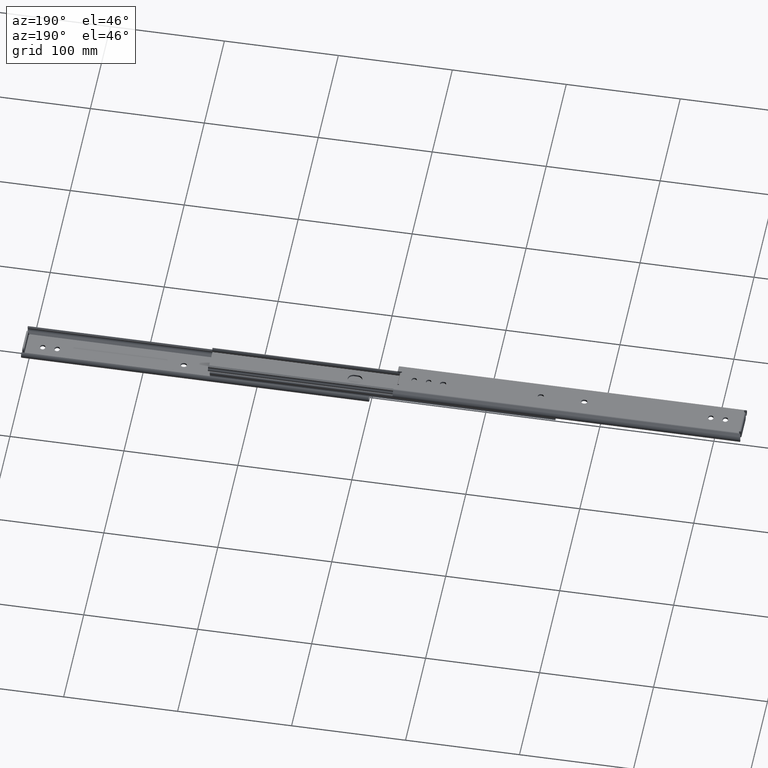
[diagram: clean part render]
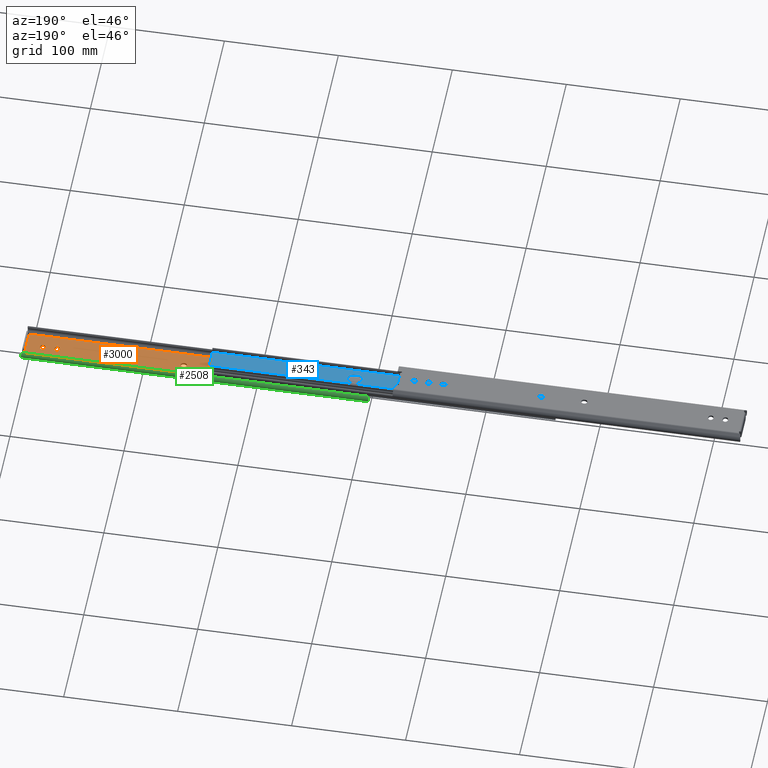
[diagram: same view with three faces highlighted in distinct colors, each labeled with its STEP entity id]
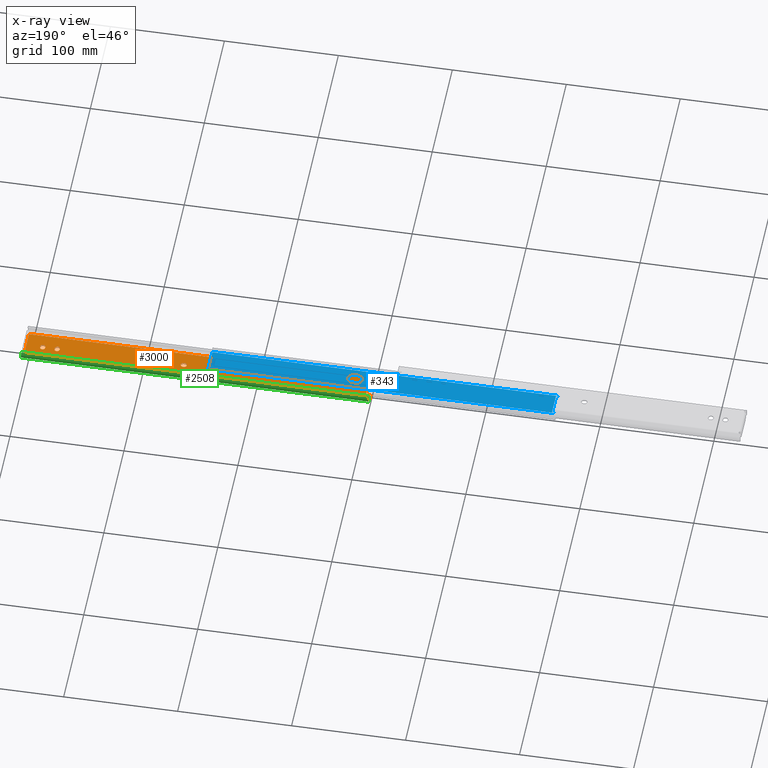
[diagram: x-ray of the same camera — body ghosted, the three highlighted faces saturated]
A machine part, auxiliary view with three faces highlighted in distinct colors.
The next image is the same camera in x-ray (body ghosted, the three faces saturated) — at least one of them is partly hidden behind the body in this view.
Their STEP definitions:

[orange] entity #3000 — the highlighted planar face has unit normal (0, 0, -1).
#3 = ORIENTED_EDGE ( 'NONE', *, *, #467, .F. ) ;
#11 = CARTESIAN_POINT ( 'NONE',  ( 304.3000000000008100, -12.79999999999970100, 1.600000000000168200 ) ) ;
#19 = DIRECTION ( 'NONE',  ( 1.000000000000000000, 0.0000000000000000000, 0.0000000000000000000 ) ) ;
#30 = CARTESIAN_POINT ( 'NONE',  ( 304.3000000000012600, 11.49999999999984700, 1.600000000000168200 ) ) ;
#32 = AXIS2_PLACEMENT_3D ( 'NONE', #2582, #794, #3667 ) ;
#48 = DIRECTION ( 'NONE',  ( 1.000000000000000000, 0.0000000000000000000, 0.0000000000000000000 ) ) ;
#52 = EDGE_LOOP ( 'NONE', ( #2857, #1819, #738, #3979 ) ) ;
#53 = EDGE_CURVE ( 'NONE', #4549, #4540, #3614, .T. ) ;
#74 = CARTESIAN_POINT ( 'NONE',  ( 278.4500000000000500, 0.4000000000000100100, 1.600000000000168200 ) ) ;
#79 = ORIENTED_EDGE ( 'NONE', *, *, #585, .F. ) ;
#86 = ORIENTED_EDGE ( 'NONE', *, *, #1978, .F. ) ;
#95 = CARTESIAN_POINT ( 'NONE',  ( 278.4500000000000500, 0.4000000000000100100, 1.600000000000168200 ) ) ;
#107 = LINE ( 'NONE', #4324, #3666 ) ;
#116 = EDGE_CURVE ( 'NONE', #2299, #1694, #1504, .T. ) ;
#121 = ORIENTED_EDGE ( 'NONE', *, *, #3022, .F. ) ;
#122 = DIRECTION ( 'NONE',  ( -1.355252715606880500E-016, 1.000000000000000000, -0.0000000000000000000 ) ) ;
#124 = ORIENTED_EDGE ( 'NONE', *, *, #3804, .F. ) ;
#152 = CARTESIAN_POINT ( 'NONE',  ( 303.2000000000000500, -11.49999999999983300, 1.600000000000168200 ) ) ;
#153 = ORIENTED_EDGE ( 'NONE', *, *, #116, .F. ) ;
#154 = DIRECTION ( 'NONE',  ( 1.000000000000000000, 0.0000000000000000000, 0.0000000000000000000 ) ) ;
#155 = CIRCLE ( 'NONE', #3068, 2.250000000000029800 ) ;
#168 = LINE ( 'NONE', #1498, #1929 ) ;
#180 = VERTEX_POINT ( 'NONE', #3755 ) ;
#182 = VERTEX_POINT ( 'NONE', #910 ) ;
#186 = CARTESIAN_POINT ( 'NONE',  ( 164.6999999999999600, 2.249999999999973800, 1.600000000000168200 ) ) ;
#193 = EDGE_CURVE ( 'NONE', #339, #599, #1286, .T. ) ;
#206 = EDGE_CURVE ( 'NONE', #2419, #4187, #331, .T. ) ;
#211 = DIRECTION ( 'NONE',  ( 0.0000000000000000000, 0.0000000000000000000, 1.000000000000000000 ) ) ;
#219 = AXIS2_PLACEMENT_3D ( 'NONE', #4317, #2505, #48 ) ;
#234 = VERTEX_POINT ( 'NONE', #2885 ) ;
#248 = CARTESIAN_POINT ( 'NONE',  ( 304.8000000000000100, -11.49999999999983300, 1.600000000000168200 ) ) ;
#264 = CIRCLE ( 'NONE', #3771, 2.250000000000001800 ) ;
#267 = VECTOR ( 'NONE', #122, 1000.000000000000000 ) ;
#288 = EDGE_CURVE ( 'NONE', #1694, #1100, #946, .T. ) ;
#290 = EDGE_CURVE ( 'NONE', #3148, #3858, #1328, .T. ) ;
#300 = ORIENTED_EDGE ( 'NONE', *, *, #2108, .F. ) ;
#309 = LINE ( 'NONE', #2218, #2068 ) ;
#320 = CARTESIAN_POINT ( 'NONE',  ( 164.6999999999999600, 1.577250959088379500E-027, 1.600000000000168200 ) ) ;
#331 = CIRCLE ( 'NONE', #2842, 1.300000000000023400 ) ;
#339 = VERTEX_POINT ( 'NONE', #345 ) ;
#345 = CARTESIAN_POINT ( 'NONE',  ( 291.1500000000000900, -0.3999999999999835900, 1.600000000000168200 ) ) ;
#359 = CARTESIAN_POINT ( 'NONE',  ( 13.65000000000000000, 0.3999999999999968000, 1.600000000000168200 ) ) ;
#360 = CARTESIAN_POINT ( 'NONE',  ( 3.800000000000001600, -8.000000000000000000, 1.600000000000168200 ) ) ;
#361 = DIRECTION ( 'NONE',  ( -1.000000000000000000, 1.734723475976775900E-014, 0.0000000000000000000 ) ) ;
#368 = EDGE_CURVE ( 'NONE', #3092, #1339, #168, .T. ) ;
#375 = DIRECTION ( 'NONE',  ( -1.000000000000000000, 0.0000000000000000000, -0.0000000000000000000 ) ) ;
#384 = VECTOR ( 'NONE', #3209, 1000.000000000000000 ) ;
#404 = CARTESIAN_POINT ( 'NONE',  ( 13.64999999999999900, -0.3999999999999964700, 1.600000000000168200 ) ) ;
#417 = ORIENTED_EDGE ( 'NONE', *, *, #3063, .F. ) ;
#424 = CARTESIAN_POINT ( 'NONE',  ( 273.9500000000000500, 0.4000000000000635300, 1.600000000000168200 ) ) ;
#429 = DIRECTION ( 'NONE',  ( -0.0000000000000000000, 1.000000000000000000, -0.0000000000000000000 ) ) ;
#448 = ORIENTED_EDGE ( 'NONE', *, *, #2178, .F. ) ;
#456 = DIRECTION ( 'NONE',  ( 1.000000000000000000, 0.0000000000000000000, 0.0000000000000000000 ) ) ;
#459 = VERTEX_POINT ( 'NONE', #2244 ) ;
#467 = EDGE_CURVE ( 'NONE', #180, #4137, #2411, .T. ) ;
#514 = LINE ( 'NONE', #1767, #1566 ) ;
#536 = VECTOR ( 'NONE', #429, 1000.000000000000000 ) ;
#542 = LINE ( 'NONE', #1824, #1369 ) ;
#543 = CIRCLE ( 'NONE', #219, 2.250000000000001800 ) ;
#551 = CARTESIAN_POINT ( 'NONE',  ( 3.800000000000001600, -6.999999999999999100, 1.600000000000168200 ) ) ;
#559 = CARTESIAN_POINT ( 'NONE',  ( 278.4500000000000500, -0.3999999999999296300, 1.600000000000168200 ) ) ;
#571 = DIRECTION ( 'NONE',  ( 0.0000000000000000000, 0.0000000000000000000, 1.000000000000000000 ) ) ;
#585 = EDGE_CURVE ( 'NONE', #3802, #182, #107, .T. ) ;
#599 = VERTEX_POINT ( 'NONE', #3673 ) ;
#611 = VERTEX_POINT ( 'NONE', #2465 ) ;
#613 = VECTOR ( 'NONE', #3831, 1000.000000000000000 ) ;
#628 = EDGE_CURVE ( 'NONE', #1912, #3148, #1749, .T. ) ;
#644 = VERTEX_POINT ( 'NONE', #2899 ) ;
#648 = VERTEX_POINT ( 'NONE', #424 ) ;
#657 = DIRECTION ( 'NONE',  ( 0.0000000000000000000, 0.0000000000000000000, 1.000000000000000000 ) ) ;
#664 = EDGE_CURVE ( 'NONE', #4540, #2216, #1541, .T. ) ;
#673 = FACE_BOUND ( 'NONE', #2407, .T. ) ;
#696 = ORIENTED_EDGE ( 'NONE', *, *, #1010, .T. ) ;
#702 = CARTESIAN_POINT ( 'NONE',  ( 164.6999999999999600, 2.249999999999973800, 1.600000000000168200 ) ) ;
#707 = VERTEX_POINT ( 'NONE', #3176 ) ;
#727 = ORIENTED_EDGE ( 'NONE', *, *, #1088, .F. ) ;
#735 = DIRECTION ( 'NONE',  ( 1.000000000000000000, 0.0000000000000000000, 0.0000000000000000000 ) ) ;
#738 = ORIENTED_EDGE ( 'NONE', *, *, #193, .F. ) ;
#757 = CARTESIAN_POINT ( 'NONE',  ( 304.3000000000008100, 12.79999999999970100, 1.600000000000168200 ) ) ;
#760 = VECTOR ( 'NONE', #842, 1000.000000000000000 ) ;
#765 = CARTESIAN_POINT ( 'NONE',  ( 1.708415533803517000E-015, -8.000000000000000000, 1.600000000000168200 ) ) ;
#766 = AXIS2_PLACEMENT_3D ( 'NONE', #2545, #4357, #3626 ) ;
#779 = DIRECTION ( 'NONE',  ( 0.0000000000000000000, -1.000000000000000000, 0.0000000000000000000 ) ) ;
#790 = DIRECTION ( 'NONE',  ( -0.0000000000000000000, 1.000000000000000000, -0.0000000000000000000 ) ) ;
#792 = CARTESIAN_POINT ( 'NONE',  ( 304.8000000000000100, -13.34999999999963900, 1.600000000000168200 ) ) ;
#794 = DIRECTION ( 'NONE',  ( 0.0000000000000000000, 0.0000000000000000000, 1.000000000000000000 ) ) ;
#799 = CARTESIAN_POINT ( 'NONE',  ( 41.70000000000000300, 3.337652803933819400E-015, 1.600000000000168200 ) ) ;
#813 = ORIENTED_EDGE ( 'NONE', *, *, #4379, .F. ) ;
#816 = ORIENTED_EDGE ( 'NONE', *, *, #1875, .F. ) ;
#842 = DIRECTION ( 'NONE',  ( 1.000000000000000000, 0.0000000000000000000, 0.0000000000000000000 ) ) ;
#859 = DIRECTION ( 'NONE',  ( 0.0000000000000000000, 0.0000000000000000000, 1.000000000000000000 ) ) ;
#868 = EDGE_CURVE ( 'NONE', #3401, #1339, #2522, .T. ) ;
#872 = VERTEX_POINT ( 'NONE', #765 ) ;
#877 = VECTOR ( 'NONE', #2202, 1000.000000000000000 ) ;
#886 = EDGE_CURVE ( 'NONE', #644, #611, #2306, .T. ) ;
#897 = AXIS2_PLACEMENT_3D ( 'NONE', #4420, #2263, #154 ) ;
#898 = VERTEX_POINT ( 'NONE', #95 ) ;
#899 = EDGE_CURVE ( 'NONE', #182, #4279, #543, .T. ) ;
#910 = CARTESIAN_POINT ( 'NONE',  ( 127.4000000000000200, -2.249999999999987600, 1.600000000000168200 ) ) ;
#937 = CARTESIAN_POINT ( 'NONE',  ( 26.34999999999999800, -0.3999999999999968600, 1.600000000000168200 ) ) ;
#946 = LINE ( 'NONE', #1429, #1654 ) ;
#948 = ORIENTED_EDGE ( 'NONE', *, *, #1689, .F. ) ;
#957 = DIRECTION ( 'NONE',  ( 0.0000000000000000000, 0.0000000000000000000, 1.000000000000000000 ) ) ;
#1000 = EDGE_CURVE ( 'NONE', #234, #2625, #4607, .T. ) ;
#1010 = EDGE_CURVE ( 'NONE', #4187, #3092, #2370, .T. ) ;
#1030 = VECTOR ( 'NONE', #1187, 1000.000000000000000 ) ;
#1069 = CIRCLE ( 'NONE', #3160, 2.249999999999974200 ) ;
#1076 = CARTESIAN_POINT ( 'NONE',  ( 18.15000000000000600, -0.3999999999999995800, 1.600000000000168200 ) ) ;
#1088 = EDGE_CURVE ( 'NONE', #459, #2285, #2995, .T. ) ;
#1098 = LINE ( 'NONE', #3679, #877 ) ;
#1100 = VERTEX_POINT ( 'NONE', #2997 ) ;
#1187 = DIRECTION ( 'NONE',  ( -1.000000000000000000, -0.0000000000000000000, -0.0000000000000000000 ) ) ;
#1228 = CARTESIAN_POINT ( 'NONE',  ( 303.2000000000000500, 11.49999999999984700, 1.600000000000168200 ) ) ;
#1230 = DIRECTION ( 'NONE',  ( -0.0000000000000000000, 1.000000000000000000, -0.0000000000000000000 ) ) ;
#1259 = CARTESIAN_POINT ( 'NONE',  ( 127.4000000000000200, 1.230082464744604100E-014, 1.600000000000168200 ) ) ;
#1286 = LINE ( 'NONE', #3287, #3893 ) ;
#1328 = LINE ( 'NONE', #359, #384 ) ;
#1336 = EDGE_LOOP ( 'NONE', ( #2293, #2735, #121, #1579 ) ) ;
#1339 = VERTEX_POINT ( 'NONE', #3642 ) ;
#1342 = CARTESIAN_POINT ( 'NONE',  ( 3.799999999999999400, 8.000000000000000000, 1.600000000000168200 ) ) ;
#1369 = VECTOR ( 'NONE', #779, 1000.000000000000000 ) ;
#1397 = CARTESIAN_POINT ( 'NONE',  ( 41.70000000000000300, -2.249999999999996400, 1.600000000000168200 ) ) ;
#1429 = CARTESIAN_POINT ( 'NONE',  ( 164.6999999999999600, -2.250000000000025800, 1.600000000000168200 ) ) ;
#1431 = VECTOR ( 'NONE', #3418, 1000.000000000000000 ) ;
#1439 = CARTESIAN_POINT ( 'NONE',  ( 3.799999999999999400, 8.000000000000000000, 1.600000000000168200 ) ) ;
#1441 = CARTESIAN_POINT ( 'NONE',  ( 41.70000000000000300, 3.337652803933819400E-015, 1.600000000000168200 ) ) ;
#1445 = ORIENTED_EDGE ( 'NONE', *, *, #2204, .F. ) ;
#1455 = AXIS2_PLACEMENT_3D ( 'NONE', #2988, #859, #3351 ) ;
#1468 = EDGE_CURVE ( 'NONE', #2216, #2761, #2255, .T. ) ;
#1477 = CARTESIAN_POINT ( 'NONE',  ( 129.6500000000000100, 1.230082464744604100E-014, 1.600000000000168200 ) ) ;
#1486 = VECTOR ( 'NONE', #2295, 1000.000000000000000 ) ;
#1496 = EDGE_CURVE ( 'NONE', #4207, #3372, #1540, .T. ) ;
#1498 = CARTESIAN_POINT ( 'NONE',  ( 0.0000000000000000000, 13.34999999999963900, 1.600000000000168200 ) ) ;
#1504 = CIRCLE ( 'NONE', #2327, 2.250000000000001800 ) ;
#1507 = EDGE_CURVE ( 'NONE', #3858, #1993, #3935, .T. ) ;
#1528 = CARTESIAN_POINT ( 'NONE',  ( 126.5999999999999900, 2.249999999999992900, 1.600000000000168200 ) ) ;
#1538 = CARTESIAN_POINT ( 'NONE',  ( 40.89999999999999100, 2.249999999999998200, 1.600000000000168200 ) ) ;
#1540 = LINE ( 'NONE', #2564, #267 ) ;
#1541 = LINE ( 'NONE', #3269, #4275 ) ;
#1561 = EDGE_CURVE ( 'NONE', #648, #1652, #1098, .T. ) ;
#1566 = VECTOR ( 'NONE', #4283, 1000.000000000000000 ) ;
#1579 = ORIENTED_EDGE ( 'NONE', *, *, #1507, .F. ) ;
#1606 = DIRECTION ( 'NONE',  ( 1.000000000000000000, 0.0000000000000000000, 0.0000000000000000000 ) ) ;
#1624 = FACE_BOUND ( 'NONE', #2660, .T. ) ;
#1638 = EDGE_CURVE ( 'NONE', #872, #2881, #542, .T. ) ;
#1652 = VERTEX_POINT ( 'NONE', #1838 ) ;
#1654 = VECTOR ( 'NONE', #19, 1000.000000000000000 ) ;
#1668 = VECTOR ( 'NONE', #4162, 1000.000000000000000 ) ;
#1689 = EDGE_CURVE ( 'NONE', #1100, #2479, #4112, .T. ) ;
#1694 = VERTEX_POINT ( 'NONE', #3645 ) ;
#1711 = DIRECTION ( 'NONE',  ( 0.0000000000000000000, 0.0000000000000000000, -1.000000000000000000 ) ) ;
#1733 = CARTESIAN_POINT ( 'NONE',  ( 303.1220781010617300, -13.34999999999963900, 1.600000000000168200 ) ) ;
#1742 = LINE ( 'NONE', #1538, #4497 ) ;
#1749 = CIRCLE ( 'NONE', #766, 2.250000000000001800 ) ;
#1767 = CARTESIAN_POINT ( 'NONE',  ( 286.6500000000000900, 0.4000000000000085700, 1.600000000000168200 ) ) ;
#1773 = DIRECTION ( 'NONE',  ( 0.0000000000000000000, 0.0000000000000000000, 1.000000000000000000 ) ) ;
#1776 = EDGE_CURVE ( 'NONE', #2479, #3449, #3656, .T. ) ;
#1780 = DIRECTION ( 'NONE',  ( 1.000000000000000000, 0.0000000000000000000, 0.0000000000000000000 ) ) ;
#1819 = ORIENTED_EDGE ( 'NONE', *, *, #2803, .F. ) ;
#1824 = CARTESIAN_POINT ( 'NONE',  ( 0.0000000000000000000, 13.34999999999963900, 1.600000000000168200 ) ) ;
#1838 = CARTESIAN_POINT ( 'NONE',  ( 273.9500000000000500, -0.4000000000000624200, 1.600000000000168200 ) ) ;
#1853 = DIRECTION ( 'NONE',  ( 0.0000000000000000000, 0.0000000000000000000, 1.000000000000000000 ) ) ;
#1875 = EDGE_CURVE ( 'NONE', #898, #648, #4169, .T. ) ;
#1879 = ORIENTED_EDGE ( 'NONE', *, *, #2428, .F. ) ;
#1912 = VERTEX_POINT ( 'NONE', #2698 ) ;
#1915 = CIRCLE ( 'NONE', #3220, 1.300000000000023400 ) ;
#1929 = VECTOR ( 'NONE', #2144, 1000.000000000000000 ) ;
#1942 = EDGE_CURVE ( 'NONE', #2625, #3802, #264, .T. ) ;
#1948 = EDGE_CURVE ( 'NONE', #2285, #3319, #2982, .T. ) ;
#1972 = CIRCLE ( 'NONE', #1455, 2.250000000000001800 ) ;
#1978 = EDGE_CURVE ( 'NONE', #3319, #3727, #1915, .T. ) ;
#1990 = DIRECTION ( 'NONE',  ( -1.000000000000000000, -0.0000000000000000000, -0.0000000000000000000 ) ) ;
#1993 = VERTEX_POINT ( 'NONE', #1076 ) ;
#2003 = CARTESIAN_POINT ( 'NONE',  ( 26.35000000000000100, 0.3999999999999965800, 1.600000000000168200 ) ) ;
#2022 = VECTOR ( 'NONE', #3801, 1000.000000000000000 ) ;
#2025 = DIRECTION ( 'NONE',  ( 0.0000000000000000000, 0.0000000000000000000, 1.000000000000000000 ) ) ;
#2031 = VECTOR ( 'NONE', #3356, 1000.000000000000000 ) ;
#2058 = VERTEX_POINT ( 'NONE', #2870 ) ;
#2068 = VECTOR ( 'NONE', #3304, 1000.000000000000000 ) ;
#2086 = CARTESIAN_POINT ( 'NONE',  ( 286.6500000000000900, -0.4000000000000084000, 1.600000000000168200 ) ) ;
#2108 = EDGE_CURVE ( 'NONE', #3089, #898, #4334, .T. ) ;
#2120 = LINE ( 'NONE', #702, #3815 ) ;
#2121 = CARTESIAN_POINT ( 'NONE',  ( 304.8000000000000100, 13.34999999999963900, 1.600000000000168200 ) ) ;
#2138 = CARTESIAN_POINT ( 'NONE',  ( 126.5999999999999900, -2.250000000000007100, 1.600000000000168200 ) ) ;
#2144 = DIRECTION ( 'NONE',  ( 0.0000000000000000000, -1.000000000000000000, 0.0000000000000000000 ) ) ;
#2178 = EDGE_CURVE ( 'NONE', #872, #4207, #309, .T. ) ;
#2202 = DIRECTION ( 'NONE',  ( 0.0000000000000000000, -1.000000000000000000, 0.0000000000000000000 ) ) ;
#2204 = EDGE_CURVE ( 'NONE', #3727, #2881, #3866, .T. ) ;
#2216 = VERTEX_POINT ( 'NONE', #2246 ) ;
#2218 = CARTESIAN_POINT ( 'NONE',  ( 1.708415533803517000E-015, -8.000000000000000000, 1.600000000000168200 ) ) ;
#2225 = AXIS2_PLACEMENT_3D ( 'NONE', #4183, #2025, #4535 ) ;
#2244 = CARTESIAN_POINT ( 'NONE',  ( 303.2000000000000500, 11.49999999999984700, 1.600000000000168200 ) ) ;
#2246 = CARTESIAN_POINT ( 'NONE',  ( 30.85000000000000100, 0.4000000000000040700, 1.600000000000168200 ) ) ;
#2252 = ORIENTED_EDGE ( 'NONE', *, *, #868, .F. ) ;
#2255 = CIRCLE ( 'NONE', #2977, 2.249999999999998700 ) ;
#2261 = DIRECTION ( 'NONE',  ( 1.000000000000000000, 0.0000000000000000000, 0.0000000000000000000 ) ) ;
#2263 = DIRECTION ( 'NONE',  ( 0.0000000000000000000, 0.0000000000000000000, 1.000000000000000000 ) ) ;
#2265 = EDGE_CURVE ( 'NONE', #2058, #180, #1972, .T. ) ;
#2285 = VERTEX_POINT ( 'NONE', #152 ) ;
#2293 = ORIENTED_EDGE ( 'NONE', *, *, #290, .F. ) ;
#2295 = DIRECTION ( 'NONE',  ( -1.000000000000000000, -0.0000000000000000000, -0.0000000000000000000 ) ) ;
#2296 = EDGE_CURVE ( 'NONE', #2419, #459, #2789, .T. ) ;
#2297 = ORIENTED_EDGE ( 'NONE', *, *, #1948, .F. ) ;
#2299 = VERTEX_POINT ( 'NONE', #186 ) ;
#2306 = CIRCLE ( 'NONE', #4366, 2.250000000000001800 ) ;
#2321 = CARTESIAN_POINT ( 'NONE',  ( 276.2000000000000500, -0.3999999999999308000, 1.600000000000168200 ) ) ;
#2327 = AXIS2_PLACEMENT_3D ( 'NONE', #320, #2424, #4582 ) ;
#2337 = VECTOR ( 'NONE', #2862, 1000.000000000000000 ) ;
#2340 = CARTESIAN_POINT ( 'NONE',  ( 3.799999999999999400, 8.000000000000000000, 1.600000000000168200 ) ) ;
#2370 = LINE ( 'NONE', #2703, #1431 ) ;
#2371 = AXIS2_PLACEMENT_3D ( 'NONE', #1441, #3934, #1780 ) ;
#2407 = EDGE_LOOP ( 'NONE', ( #79, #4403, #4608, #417, #4080 ) ) ;
#2411 = LINE ( 'NONE', #2964, #760 ) ;
#2419 = VERTEX_POINT ( 'NONE', #30 ) ;
#2424 = DIRECTION ( 'NONE',  ( 0.0000000000000000000, 0.0000000000000000000, 1.000000000000000000 ) ) ;
#2428 = EDGE_CURVE ( 'NONE', #3449, #2299, #2120, .T. ) ;
#2440 = FACE_OUTER_BOUND ( 'NONE', #2793, .T. ) ;
#2465 = CARTESIAN_POINT ( 'NONE',  ( 41.70000000000000300, 2.249999999999998200, 1.600000000000168200 ) ) ;
#2467 = DIRECTION ( 'NONE',  ( -0.0000000000000000000, -0.0000000000000000000, 1.000000000000000000 ) ) ;
#2478 = DIRECTION ( 'NONE',  ( 0.0000000000000000000, 0.0000000000000000000, -1.000000000000000000 ) ) ;
#2479 = VERTEX_POINT ( 'NONE', #3914 ) ;
#2505 = DIRECTION ( 'NONE',  ( 0.0000000000000000000, 0.0000000000000000000, 1.000000000000000000 ) ) ;
#2522 = LINE ( 'NONE', #2959, #1486 ) ;
#2545 = CARTESIAN_POINT ( 'NONE',  ( 15.89999999999999700, 0.3999999999999997400, 1.600000000000168200 ) ) ;
#2555 = FACE_BOUND ( 'NONE', #4339, .T. ) ;
#2564 = CARTESIAN_POINT ( 'NONE',  ( 3.799999999999999400, 8.000000000000000000, 1.600000000000168200 ) ) ;
#2582 = CARTESIAN_POINT ( 'NONE',  ( 15.90000000000000000, -0.3999999999999997400, 1.600000000000168200 ) ) ;
#2592 = VECTOR ( 'NONE', #1990, 1000.000000000000000 ) ;
#2609 = AXIS2_PLACEMENT_3D ( 'NONE', #2121, #2478, #375 ) ;
#2617 = LINE ( 'NONE', #2003, #1668 ) ;
#2625 = VERTEX_POINT ( 'NONE', #1528 ) ;
#2655 = ORIENTED_EDGE ( 'NONE', *, *, #1638, .T. ) ;
#2660 = EDGE_LOOP ( 'NONE', ( #4503, #3613, #4394, #2716 ) ) ;
#2674 = DIRECTION ( 'NONE',  ( 1.000000000000000000, 0.0000000000000000000, 0.0000000000000000000 ) ) ;
#2678 = ORIENTED_EDGE ( 'NONE', *, *, #4050, .F. ) ;
#2679 = CARTESIAN_POINT ( 'NONE',  ( 276.1999999999999900, 0.4000000000000097400, 1.600000000000168200 ) ) ;
#2698 = CARTESIAN_POINT ( 'NONE',  ( 18.15000000000000600, 0.3999999999999995800, 1.600000000000168200 ) ) ;
#2703 = CARTESIAN_POINT ( 'NONE',  ( 304.8000000000000100, 13.34999999999963900, 1.600000000000168200 ) ) ;
#2716 = ORIENTED_EDGE ( 'NONE', *, *, #53, .F. ) ;
#2735 = ORIENTED_EDGE ( 'NONE', *, *, #628, .F. ) ;
#2755 = ORIENTED_EDGE ( 'NONE', *, *, #2265, .F. ) ;
#2761 = VERTEX_POINT ( 'NONE', #3799 ) ;
#2773 = CARTESIAN_POINT ( 'NONE',  ( 288.9000000000000300, -0.3999999999999847600, 1.600000000000168200 ) ) ;
#2789 = LINE ( 'NONE', #3721, #3531 ) ;
#2793 = EDGE_LOOP ( 'NONE', ( #2902, #4507, #696, #3404, #2252, #2678, #124, #3216, #448, #2655, #1445, #86, #2297, #727 ) ) ;
#2803 = EDGE_CURVE ( 'NONE', #599, #3134, #3132, .T. ) ;
#2835 = CARTESIAN_POINT ( 'NONE',  ( 303.1220781010617300, 13.34999999999963900, 1.600000000000168200 ) ) ;
#2842 = AXIS2_PLACEMENT_3D ( 'NONE', #757, #1711, #4241 ) ;
#2857 = ORIENTED_EDGE ( 'NONE', *, *, #3658, .F. ) ;
#2862 = DIRECTION ( 'NONE',  ( -1.355252715606880500E-016, 1.000000000000000000, -0.0000000000000000000 ) ) ;
#2870 = CARTESIAN_POINT ( 'NONE',  ( 40.89999999999999100, 2.249999999999998200, 1.600000000000168200 ) ) ;
#2881 = VERTEX_POINT ( 'NONE', #4224 ) ;
#2885 = CARTESIAN_POINT ( 'NONE',  ( 127.4000000000000200, 2.249999999999992900, 1.600000000000168200 ) ) ;
#2899 = CARTESIAN_POINT ( 'NONE',  ( 43.95000000000000300, 3.337652803933819400E-015, 1.600000000000168200 ) ) ;
#2902 = ORIENTED_EDGE ( 'NONE', *, *, #2296, .F. ) ;
#2928 = DIRECTION ( 'NONE',  ( 0.0000000000000000000, 0.0000000000000000000, 1.000000000000000000 ) ) ;
#2959 = CARTESIAN_POINT ( 'NONE',  ( 0.0000000000000000000, 8.000000000000000000, 1.600000000000168200 ) ) ;
#2964 = CARTESIAN_POINT ( 'NONE',  ( 40.89999999999999100, -2.250000000000001800, 1.600000000000168200 ) ) ;
#2977 = AXIS2_PLACEMENT_3D ( 'NONE', #3364, #3340, #2261 ) ;
#2982 = LINE ( 'NONE', #248, #2022 ) ;
#2988 = CARTESIAN_POINT ( 'NONE',  ( 40.89999999999999100, 3.239681060002030200E-015, 1.600000000000168200 ) ) ;
#2995 = LINE ( 'NONE', #1228, #2031 ) ;
#2997 = CARTESIAN_POINT ( 'NONE',  ( 165.5000000000000300, -2.249999999999973800, 1.600000000000168200 ) ) ;
#3000 = ADVANCED_FACE ( 'NONE', ( #3517, #673, #2555, #4483, #4377, #1624, #3417, #2440 ), #4284, .F. ) ;
#3001 = EDGE_CURVE ( 'NONE', #4137, #644, #4251, .T. ) ;
#3007 = ORIENTED_EDGE ( 'NONE', *, *, #4500, .F. ) ;
#3022 = EDGE_CURVE ( 'NONE', #1993, #1912, #4152, .T. ) ;
#3056 = DIRECTION ( 'NONE',  ( 1.000000000000000000, 0.0000000000000000000, 0.0000000000000000000 ) ) ;
#3063 = EDGE_CURVE ( 'NONE', #4279, #234, #3080, .T. ) ;
#3068 = AXIS2_PLACEMENT_3D ( 'NONE', #2321, #211, #2674 ) ;
#3077 = CARTESIAN_POINT ( 'NONE',  ( 13.64999999999999500, 0.3999999999999975800, 1.600000000000168200 ) ) ;
#3080 = CIRCLE ( 'NONE', #4071, 2.250000000000001800 ) ;
#3088 = CARTESIAN_POINT ( 'NONE',  ( 126.5999999999999900, 1.215386703154835400E-014, 1.600000000000168200 ) ) ;
#3089 = VERTEX_POINT ( 'NONE', #559 ) ;
#3092 = VERTEX_POINT ( 'NONE', #3403 ) ;
#3115 = EDGE_LOOP ( 'NONE', ( #3775, #816, #300, #3007 ) ) ;
#3132 = CIRCLE ( 'NONE', #2225, 2.249999999999974200 ) ;
#3134 = VERTEX_POINT ( 'NONE', #4486 ) ;
#3148 = VERTEX_POINT ( 'NONE', #3077 ) ;
#3154 = DIRECTION ( 'NONE',  ( 1.000000000000000000, 0.0000000000000000000, 0.0000000000000000000 ) ) ;
#3160 = AXIS2_PLACEMENT_3D ( 'NONE', #2773, #657, #3154 ) ;
#3175 = EDGE_CURVE ( 'NONE', #2761, #4549, #2617, .T. ) ;
#3176 = CARTESIAN_POINT ( 'NONE',  ( 3.799999999999999400, 7.000000000000000000, 1.600000000000168200 ) ) ;
#3206 = DIRECTION ( 'NONE',  ( -0.0000000000000000000, 1.000000000000000000, -0.0000000000000000000 ) ) ;
#3209 = DIRECTION ( 'NONE',  ( 0.0000000000000000000, -1.000000000000000000, 0.0000000000000000000 ) ) ;
#3216 = ORIENTED_EDGE ( 'NONE', *, *, #1496, .F. ) ;
#3220 = AXIS2_PLACEMENT_3D ( 'NONE', #11, #2467, #361 ) ;
#3269 = CARTESIAN_POINT ( 'NONE',  ( 30.85000000000000100, 0.4000000000000040700, 1.600000000000168200 ) ) ;
#3282 = AXIS2_PLACEMENT_3D ( 'NONE', #2679, #571, #3056 ) ;
#3287 = CARTESIAN_POINT ( 'NONE',  ( 291.1500000000000900, 0.4000000000000670800, 1.600000000000168200 ) ) ;
#3298 = LINE ( 'NONE', #1439, #2337 ) ;
#3304 = DIRECTION ( 'NONE',  ( 1.000000000000000000, 0.0000000000000000000, 0.0000000000000000000 ) ) ;
#3305 = ORIENTED_EDGE ( 'NONE', *, *, #1776, .F. ) ;
#3307 = VECTOR ( 'NONE', #1230, 1000.000000000000000 ) ;
#3317 = DIRECTION ( 'NONE',  ( -1.000000000000000000, -0.0000000000000000000, -0.0000000000000000000 ) ) ;
#3319 = VERTEX_POINT ( 'NONE', #4314 ) ;
#3340 = DIRECTION ( 'NONE',  ( 0.0000000000000000000, 0.0000000000000000000, 1.000000000000000000 ) ) ;
#3351 = DIRECTION ( 'NONE',  ( 1.000000000000000000, 0.0000000000000000000, 0.0000000000000000000 ) ) ;
#3356 = DIRECTION ( 'NONE',  ( 0.0000000000000000000, -1.000000000000000000, 0.0000000000000000000 ) ) ;
#3357 = CARTESIAN_POINT ( 'NONE',  ( 18.15000000000000600, 0.3999999999999995800, 1.600000000000168200 ) ) ;
#3363 = DIRECTION ( 'NONE',  ( -1.000000000000000000, 0.0000000000000000000, 0.0000000000000000000 ) ) ;
#3364 = CARTESIAN_POINT ( 'NONE',  ( 28.59999999999999800, 0.4000000000000038000, 1.600000000000168200 ) ) ;
#3366 = ORIENTED_EDGE ( 'NONE', *, *, #3001, .F. ) ;
#3372 = VERTEX_POINT ( 'NONE', #551 ) ;
#3401 = VERTEX_POINT ( 'NONE', #2340 ) ;
#3403 = CARTESIAN_POINT ( 'NONE',  ( 0.0000000000000000000, 13.34999999999963900, 1.600000000000168200 ) ) ;
#3404 = ORIENTED_EDGE ( 'NONE', *, *, #368, .T. ) ;
#3417 = FACE_BOUND ( 'NONE', #1336, .T. ) ;
#3418 = DIRECTION ( 'NONE',  ( -1.000000000000000000, -0.0000000000000000000, -0.0000000000000000000 ) ) ;
#3444 = DIRECTION ( 'NONE',  ( 1.000000000000000000, 0.0000000000000000000, 0.0000000000000000000 ) ) ;
#3449 = VERTEX_POINT ( 'NONE', #3798 ) ;
#3517 = FACE_BOUND ( 'NONE', #4495, .T. ) ;
#3531 = VECTOR ( 'NONE', #3363, 1000.000000000000000 ) ;
#3553 = DIRECTION ( 'NONE',  ( -1.000000000000000000, -0.0000000000000000000, -0.0000000000000000000 ) ) ;
#3581 = EDGE_CURVE ( 'NONE', #3730, #339, #1069, .T. ) ;
#3613 = ORIENTED_EDGE ( 'NONE', *, *, #1468, .F. ) ;
#3614 = CIRCLE ( 'NONE', #4575, 2.250000000000001800 ) ;
#3626 = DIRECTION ( 'NONE',  ( 1.000000000000000000, 0.0000000000000000000, 0.0000000000000000000 ) ) ;
#3642 = CARTESIAN_POINT ( 'NONE',  ( 0.0000000000000000000, 8.000000000000000000, 1.600000000000168200 ) ) ;
#3645 = CARTESIAN_POINT ( 'NONE',  ( 164.6999999999999600, -2.250000000000026200, 1.600000000000168200 ) ) ;
#3656 = CIRCLE ( 'NONE', #897, 2.250000000000001800 ) ;
#3658 = EDGE_CURVE ( 'NONE', #3134, #3730, #514, .T. ) ;
#3666 = VECTOR ( 'NONE', #735, 1000.000000000000000 ) ;
#3667 = DIRECTION ( 'NONE',  ( 1.000000000000000000, 0.0000000000000000000, 0.0000000000000000000 ) ) ;
#3673 = CARTESIAN_POINT ( 'NONE',  ( 291.1500000000000900, 0.4000000000000670800, 1.600000000000168200 ) ) ;
#3679 = CARTESIAN_POINT ( 'NONE',  ( 273.9500000000000500, 0.4000000000000634200, 1.600000000000168200 ) ) ;
#3721 = CARTESIAN_POINT ( 'NONE',  ( 304.8000000000000100, 11.49999999999984700, 1.600000000000168200 ) ) ;
#3727 = VERTEX_POINT ( 'NONE', #1733 ) ;
#3730 = VERTEX_POINT ( 'NONE', #2086 ) ;
#3742 = DIRECTION ( 'NONE',  ( 0.0000000000000000000, 0.0000000000000000000, 1.000000000000000000 ) ) ;
#3755 = CARTESIAN_POINT ( 'NONE',  ( 40.89999999999993500, -2.250000000000001800, 1.600000000000168200 ) ) ;
#3771 = AXIS2_PLACEMENT_3D ( 'NONE', #3088, #957, #3444 ) ;
#3775 = ORIENTED_EDGE ( 'NONE', *, *, #1561, .F. ) ;
#3793 = ORIENTED_EDGE ( 'NONE', *, *, #886, .F. ) ;
#3798 = CARTESIAN_POINT ( 'NONE',  ( 165.5000000000000300, 2.249999999999973800, 1.600000000000168200 ) ) ;
#3799 = CARTESIAN_POINT ( 'NONE',  ( 26.34999999999998400, 0.3999999999999975800, 1.600000000000168200 ) ) ;
#3801 = DIRECTION ( 'NONE',  ( 1.000000000000000000, -0.0000000000000000000, -0.0000000000000000000 ) ) ;
#3802 = VERTEX_POINT ( 'NONE', #2138 ) ;
#3804 = EDGE_CURVE ( 'NONE', #3372, #707, #3298, .T. ) ;
#3815 = VECTOR ( 'NONE', #3553, 1000.000000000000000 ) ;
#3831 = DIRECTION ( 'NONE',  ( -1.355252715606880500E-016, 1.000000000000000000, -0.0000000000000000000 ) ) ;
#3858 = VERTEX_POINT ( 'NONE', #404 ) ;
#3866 = LINE ( 'NONE', #792, #1030 ) ;
#3893 = VECTOR ( 'NONE', #790, 1000.000000000000000 ) ;
#3914 = CARTESIAN_POINT ( 'NONE',  ( 167.7500000000000000, 2.594053039760294200E-014, 1.600000000000168200 ) ) ;
#3922 = DIRECTION ( 'NONE',  ( 1.000000000000000000, 0.0000000000000000000, 0.0000000000000000000 ) ) ;
#3934 = DIRECTION ( 'NONE',  ( 0.0000000000000000000, 0.0000000000000000000, 1.000000000000000000 ) ) ;
#3935 = CIRCLE ( 'NONE', #32, 2.250000000000001800 ) ;
#3979 = ORIENTED_EDGE ( 'NONE', *, *, #3581, .F. ) ;
#4013 = CARTESIAN_POINT ( 'NONE',  ( 165.5000000000000000, 2.594053039760294200E-014, 1.600000000000168200 ) ) ;
#4050 = EDGE_CURVE ( 'NONE', #707, #3401, #4418, .T. ) ;
#4071 = AXIS2_PLACEMENT_3D ( 'NONE', #1259, #3742, #1606 ) ;
#4080 = ORIENTED_EDGE ( 'NONE', *, *, #899, .F. ) ;
#4094 = AXIS2_PLACEMENT_3D ( 'NONE', #4013, #1853, #4378 ) ;
#4112 = CIRCLE ( 'NONE', #4094, 2.250000000000001800 ) ;
#4137 = VERTEX_POINT ( 'NONE', #1397 ) ;
#4147 = CARTESIAN_POINT ( 'NONE',  ( 126.5999999999999900, 2.249999999999992900, 1.600000000000168200 ) ) ;
#4152 = LINE ( 'NONE', #3357, #3307 ) ;
#4162 = DIRECTION ( 'NONE',  ( 0.0000000000000000000, -1.000000000000000000, 0.0000000000000000000 ) ) ;
#4169 = CIRCLE ( 'NONE', #3282, 2.249999999999974200 ) ;
#4183 = CARTESIAN_POINT ( 'NONE',  ( 288.9000000000000300, 0.4000000000000668000, 1.600000000000168200 ) ) ;
#4187 = VERTEX_POINT ( 'NONE', #2835 ) ;
#4207 = VERTEX_POINT ( 'NONE', #360 ) ;
#4224 = CARTESIAN_POINT ( 'NONE',  ( 0.0000000000000000000, -13.34999999999963900, 1.600000000000168200 ) ) ;
#4241 = DIRECTION ( 'NONE',  ( -1.000000000000000000, 0.0000000000000000000, 0.0000000000000000000 ) ) ;
#4251 = CIRCLE ( 'NONE', #2371, 2.250000000000001800 ) ;
#4275 = VECTOR ( 'NONE', #3206, 1000.000000000000000 ) ;
#4279 = VERTEX_POINT ( 'NONE', #1477 ) ;
#4283 = DIRECTION ( 'NONE',  ( 0.0000000000000000000, -1.000000000000000000, 0.0000000000000000000 ) ) ;
#4284 = PLANE ( 'NONE',  #2609 ) ;
#4293 = CARTESIAN_POINT ( 'NONE',  ( 28.60000000000000100, -0.3999999999999991300, 1.600000000000168200 ) ) ;
#4314 = CARTESIAN_POINT ( 'NONE',  ( 304.3000000000012600, -11.49999999999966400, 1.600000000000168200 ) ) ;
#4317 = CARTESIAN_POINT ( 'NONE',  ( 127.4000000000000200, 1.230082464744604100E-014, 1.600000000000168200 ) ) ;
#4324 = CARTESIAN_POINT ( 'NONE',  ( 126.5999999999999900, -2.250000000000006700, 1.600000000000168200 ) ) ;
#4334 = LINE ( 'NONE', #74, #536 ) ;
#4339 = EDGE_LOOP ( 'NONE', ( #3, #2755, #813, #3793, #3366 ) ) ;
#4354 = ORIENTED_EDGE ( 'NONE', *, *, #288, .F. ) ;
#4357 = DIRECTION ( 'NONE',  ( 0.0000000000000000000, 0.0000000000000000000, 1.000000000000000000 ) ) ;
#4366 = AXIS2_PLACEMENT_3D ( 'NONE', #799, #2928, #456 ) ;
#4377 = FACE_BOUND ( 'NONE', #3115, .T. ) ;
#4378 = DIRECTION ( 'NONE',  ( 1.000000000000000000, 0.0000000000000000000, 0.0000000000000000000 ) ) ;
#4379 = EDGE_CURVE ( 'NONE', #611, #2058, #1742, .T. ) ;
#4394 = ORIENTED_EDGE ( 'NONE', *, *, #664, .F. ) ;
#4403 = ORIENTED_EDGE ( 'NONE', *, *, #1942, .F. ) ;
#4418 = LINE ( 'NONE', #1342, #613 ) ;
#4420 = CARTESIAN_POINT ( 'NONE',  ( 165.5000000000000000, 2.594053039760294200E-014, 1.600000000000168200 ) ) ;
#4483 = FACE_BOUND ( 'NONE', #52, .T. ) ;
#4486 = CARTESIAN_POINT ( 'NONE',  ( 286.6500000000000900, 0.4000000000000097400, 1.600000000000168200 ) ) ;
#4489 = CARTESIAN_POINT ( 'NONE',  ( 30.85000000000000100, -0.3999999999999980200, 1.600000000000168200 ) ) ;
#4495 = EDGE_LOOP ( 'NONE', ( #4354, #153, #1879, #3305, #948 ) ) ;
#4497 = VECTOR ( 'NONE', #3317, 1000.000000000000000 ) ;
#4500 = EDGE_CURVE ( 'NONE', #1652, #3089, #155, .T. ) ;
#4503 = ORIENTED_EDGE ( 'NONE', *, *, #3175, .F. ) ;
#4507 = ORIENTED_EDGE ( 'NONE', *, *, #206, .T. ) ;
#4535 = DIRECTION ( 'NONE',  ( 1.000000000000000000, 0.0000000000000000000, 0.0000000000000000000 ) ) ;
#4540 = VERTEX_POINT ( 'NONE', #4489 ) ;
#4549 = VERTEX_POINT ( 'NONE', #937 ) ;
#4575 = AXIS2_PLACEMENT_3D ( 'NONE', #4293, #1773, #3922 ) ;
#4582 = DIRECTION ( 'NONE',  ( 1.000000000000000000, 0.0000000000000000000, 0.0000000000000000000 ) ) ;
#4607 = LINE ( 'NONE', #4147, #2592 ) ;
#4608 = ORIENTED_EDGE ( 'NONE', *, *, #1000, .F. ) ;

[blue] entity #343 — the highlighted planar face has unit normal (0, 0, -1).
#9 = CARTESIAN_POINT ( 'NONE',  ( -140.2000000000000200, 1.162856093221528000E-012, -7.999999999999712200 ) ) ;
#31 = LINE ( 'NONE', #2183, #1580 ) ;
#76 = EDGE_CURVE ( 'NONE', #389, #3839, #4463, .T. ) ;
#82 = VECTOR ( 'NONE', #2430, 1000.000000000000000 ) ;
#119 = DIRECTION ( 'NONE',  ( 1.000000000000000000, -6.982962677686266700E-015, -4.876176775795935800E-029 ) ) ;
#196 = VECTOR ( 'NONE', #295, 1000.000000000000000 ) ;
#230 = CARTESIAN_POINT ( 'NONE',  ( 29.64999999999993100, 1.457961339721487900E-014, -7.999999999999712200 ) ) ;
#238 = CARTESIAN_POINT ( 'NONE',  ( 34.39999999999992800, -2.417582946394484800E-014, -7.999999999999712200 ) ) ;
#259 = VERTEX_POINT ( 'NONE', #3643 ) ;
#265 = ORIENTED_EDGE ( 'NONE', *, *, #2210, .T. ) ;
#269 = ORIENTED_EDGE ( 'NONE', *, *, #4471, .F. ) ;
#284 = CARTESIAN_POINT ( 'NONE',  ( -138.6000000000000200, 1.151683352937230000E-012, -7.999999999999712200 ) ) ;
#295 = DIRECTION ( 'NONE',  ( 1.000000000000000000, -6.982962677686266700E-015, -4.876176775795935800E-029 ) ) ;
#324 = DIRECTION ( 'NONE',  ( -1.000000000000000000, 6.982962677686266700E-015, 4.876176775795935800E-029 ) ) ;
#335 = VERTEX_POINT ( 'NONE', #693 ) ;
#343 = ADVANCED_FACE ( 'NONE', ( #3109, #1105 ), #675, .F. ) ;
#369 = CARTESIAN_POINT ( 'NONE',  ( -138.6000000000000800, -8.199999999998848200, -7.999999999999769100 ) ) ;
#374 = CARTESIAN_POINT ( 'NONE',  ( -138.6000000000000200, 1.151683352937230000E-012, -7.999999999999712200 ) ) ;
#389 = VERTEX_POINT ( 'NONE', #736 ) ;
#394 = AXIS2_PLACEMENT_3D ( 'NONE', #238, #2706, #584 ) ;
#405 = VECTOR ( 'NONE', #2476, 1000.000000000000000 ) ;
#435 = DIRECTION ( 'NONE',  ( 6.982962677686267500E-015, 1.000000000000000000, 6.982962677686267500E-015 ) ) ;
#451 = CARTESIAN_POINT ( 'NONE',  ( -140.1999999999999600, 4.750000000001225700, -7.999999999999679400 ) ) ;
#470 = VECTOR ( 'NONE', #3100, 1000.000000000000000 ) ;
#509 = ORIENTED_EDGE ( 'NONE', *, *, #4141, .T. ) ;
#522 = EDGE_LOOP ( 'NONE', ( #1361, #2389, #3863, #2439, #567, #265, #677, #3956, #269, #2083 ) ) ;
#567 = ORIENTED_EDGE ( 'NONE', *, *, #2544, .F. ) ;
#568 = VERTEX_POINT ( 'NONE', #2227 ) ;
#584 = DIRECTION ( 'NONE',  ( -1.000000000000000000, 6.982962677686264300E-015, 0.0000000000000000000 ) ) ;
#675 = PLANE ( 'NONE',  #862 ) ;
#677 = ORIENTED_EDGE ( 'NONE', *, *, #2904, .T. ) ;
#693 = CARTESIAN_POINT ( 'NONE',  ( 37.59999999999999400, 4.749999999999936100, -7.999999999999679400 ) ) ;
#736 = CARTESIAN_POINT ( 'NONE',  ( 37.59999999999993700, -4.750000000000063900, -7.999999999999745100 ) ) ;
#767 = VERTEX_POINT ( 'NONE', #4307 ) ;
#777 = ORIENTED_EDGE ( 'NONE', *, *, #76, .T. ) ;
#848 = VECTOR ( 'NONE', #324, 1000.000000000000000 ) ;
#862 = AXIS2_PLACEMENT_3D ( 'NONE', #9, #3177, #4308 ) ;
#876 = EDGE_CURVE ( 'NONE', #335, #389, #3484, .T. ) ;
#961 = LINE ( 'NONE', #2790, #848 ) ;
#1004 = CIRCLE ( 'NONE', #1481, 4.750000000000000900 ) ;
#1028 = VERTEX_POINT ( 'NONE', #3774 ) ;
#1062 = CARTESIAN_POINT ( 'NONE',  ( 34.39999999999992800, -2.417582946394484800E-014, -7.999999999999712200 ) ) ;
#1105 = FACE_OUTER_BOUND ( 'NONE', #522, .T. ) ;
#1144 = LINE ( 'NONE', #3318, #3759 ) ;
#1322 = DIRECTION ( 'NONE',  ( 1.000000000000000000, -6.982962677686266700E-015, -4.876176775795935800E-029 ) ) ;
#1361 = ORIENTED_EDGE ( 'NONE', *, *, #3554, .T. ) ;
#1398 = LINE ( 'NONE', #1665, #470 ) ;
#1411 = DIRECTION ( 'NONE',  ( -1.000000000000000000, 6.982962677686264300E-015, 0.0000000000000000000 ) ) ;
#1414 = CARTESIAN_POINT ( 'NONE',  ( -140.2000000000000700, -4.749999999998774300, -7.999999999999745100 ) ) ;
#1481 = AXIS2_PLACEMENT_3D ( 'NONE', #1062, #3548, #1411 ) ;
#1580 = VECTOR ( 'NONE', #435, 1000.000000000000000 ) ;
#1582 = CARTESIAN_POINT ( 'NONE',  ( 162.9999999999998600, -10.32509259386286400, -7.999999999999785100 ) ) ;
#1662 = EDGE_CURVE ( 'NONE', #259, #335, #3149, .T. ) ;
#1665 = CARTESIAN_POINT ( 'NONE',  ( -138.6000000000000200, 1.151683352937230000E-012, -7.999999999999712200 ) ) ;
#1721 = CARTESIAN_POINT ( 'NONE',  ( -140.1999999999999600, 10.32509259386307400, -7.999999999999639400 ) ) ;
#1814 = DIRECTION ( 'NONE',  ( 0.0000000000000000000, 6.982962677686266700E-015, -1.000000000000000000 ) ) ;
#2004 = VECTOR ( 'NONE', #4205, 1000.000000000000000 ) ;
#2083 = ORIENTED_EDGE ( 'NONE', *, *, #4617, .T. ) ;
#2125 = LINE ( 'NONE', #2302, #4051 ) ;
#2152 = EDGE_LOOP ( 'NONE', ( #2257, #3164, #777, #509, #3753 ) ) ;
#2183 = CARTESIAN_POINT ( 'NONE',  ( -140.2000000000000200, 1.162856093221528000E-012, -7.999999999999712200 ) ) ;
#2186 = AXIS2_PLACEMENT_3D ( 'NONE', #4335, #1814, #3968 ) ;
#2210 = EDGE_CURVE ( 'NONE', #568, #4457, #1144, .T. ) ;
#2227 = CARTESIAN_POINT ( 'NONE',  ( -140.2000000000000700, -10.32509259386074700, -7.999999999999785100 ) ) ;
#2248 = VERTEX_POINT ( 'NONE', #2966 ) ;
#2257 = ORIENTED_EDGE ( 'NONE', *, *, #1662, .T. ) ;
#2302 = CARTESIAN_POINT ( 'NONE',  ( -140.2000000000000200, 1.162856093221528000E-012, -7.999999999999712200 ) ) ;
#2305 = VECTOR ( 'NONE', #4363, 1000.000000000000000 ) ;
#2389 = ORIENTED_EDGE ( 'NONE', *, *, #3493, .T. ) ;
#2430 = DIRECTION ( 'NONE',  ( 6.982962677686267500E-015, 1.000000000000000000, 6.982962677686267500E-015 ) ) ;
#2439 = ORIENTED_EDGE ( 'NONE', *, *, #3618, .T. ) ;
#2453 = VERTEX_POINT ( 'NONE', #369 ) ;
#2476 = DIRECTION ( 'NONE',  ( -6.982962677686266700E-015, -1.000000000000000000, -6.982962677686266700E-015 ) ) ;
#2512 = VECTOR ( 'NONE', #1322, 1000.000000000000000 ) ;
#2544 = EDGE_CURVE ( 'NONE', #568, #1028, #31, .T. ) ;
#2659 = DIRECTION ( 'NONE',  ( 6.982962677686267500E-015, 1.000000000000000000, 6.982962677686267500E-015 ) ) ;
#2706 = DIRECTION ( 'NONE',  ( 0.0000000000000000000, 6.982962677686266700E-015, -1.000000000000000000 ) ) ;
#2714 = VERTEX_POINT ( 'NONE', #230 ) ;
#2790 = CARTESIAN_POINT ( 'NONE',  ( -140.2000000000000700, -9.699999999998841100, -7.999999999999779700 ) ) ;
#2898 = EDGE_CURVE ( 'NONE', #767, #3292, #3026, .T. ) ;
#2904 = EDGE_CURVE ( 'NONE', #4457, #3292, #3855, .T. ) ;
#2908 = VERTEX_POINT ( 'NONE', #4592 ) ;
#2966 = CARTESIAN_POINT ( 'NONE',  ( -140.1999999999999600, 9.700000000001152100, -7.999999999999644700 ) ) ;
#3026 = LINE ( 'NONE', #1721, #196 ) ;
#3053 = CARTESIAN_POINT ( 'NONE',  ( -138.5999999999999700, 9.700000000001143300, -7.999999999999644700 ) ) ;
#3100 = DIRECTION ( 'NONE',  ( -6.982962677686266700E-015, -1.000000000000000000, -6.982962677686266700E-015 ) ) ;
#3109 = FACE_BOUND ( 'NONE', #2152, .T. ) ;
#3137 = EDGE_CURVE ( 'NONE', #2714, #259, #4036, .T. ) ;
#3149 = LINE ( 'NONE', #451, #2305 ) ;
#3164 = ORIENTED_EDGE ( 'NONE', *, *, #876, .T. ) ;
#3177 = DIRECTION ( 'NONE',  ( 0.0000000000000000000, 6.982962677686266700E-015, -1.000000000000000000 ) ) ;
#3234 = CARTESIAN_POINT ( 'NONE',  ( 34.39999999999990600, -4.750000000000041700, -7.999999999999745100 ) ) ;
#3241 = LINE ( 'NONE', #374, #405 ) ;
#3292 = VERTEX_POINT ( 'NONE', #3568 ) ;
#3318 = CARTESIAN_POINT ( 'NONE',  ( -140.2000000000000700, -10.32509259386074700, -7.999999999999785100 ) ) ;
#3397 = VECTOR ( 'NONE', #4273, 1000.000000000000000 ) ;
#3484 = CIRCLE ( 'NONE', #2186, 4.749999999999997300 ) ;
#3493 = EDGE_CURVE ( 'NONE', #4331, #2453, #1398, .T. ) ;
#3548 = DIRECTION ( 'NONE',  ( 0.0000000000000000000, 6.982962677686266700E-015, -1.000000000000000000 ) ) ;
#3554 = EDGE_CURVE ( 'NONE', #4544, #4331, #3908, .T. ) ;
#3568 = CARTESIAN_POINT ( 'NONE',  ( 163.0000000000000300, 10.32509259386095700, -7.999999999999639400 ) ) ;
#3618 = EDGE_CURVE ( 'NONE', #2908, #1028, #961, .T. ) ;
#3643 = CARTESIAN_POINT ( 'NONE',  ( 34.39999999999995600, 4.749999999999958300, -7.999999999999679400 ) ) ;
#3705 = EDGE_CURVE ( 'NONE', #2453, #2908, #3241, .T. ) ;
#3753 = ORIENTED_EDGE ( 'NONE', *, *, #3137, .T. ) ;
#3759 = VECTOR ( 'NONE', #119, 1000.000000000000000 ) ;
#3774 = CARTESIAN_POINT ( 'NONE',  ( -140.2000000000000700, -9.699999999998841100, -7.999999999999779700 ) ) ;
#3809 = CARTESIAN_POINT ( 'NONE',  ( -140.1999999999999600, 9.700000000001155700, -7.999999999999644700 ) ) ;
#3839 = VERTEX_POINT ( 'NONE', #3234 ) ;
#3855 = LINE ( 'NONE', #4237, #82 ) ;
#3863 = ORIENTED_EDGE ( 'NONE', *, *, #3705, .T. ) ;
#3908 = LINE ( 'NONE', #284, #2004 ) ;
#3956 = ORIENTED_EDGE ( 'NONE', *, *, #2898, .F. ) ;
#3968 = DIRECTION ( 'NONE',  ( -1.000000000000000000, 6.982962677686269100E-015, 0.0000000000000000000 ) ) ;
#4010 = CARTESIAN_POINT ( 'NONE',  ( -138.5999999999999700, 8.200000000001150400, -7.999999999999655400 ) ) ;
#4036 = CIRCLE ( 'NONE', #394, 4.750000000000000900 ) ;
#4051 = VECTOR ( 'NONE', #2659, 1000.000000000000000 ) ;
#4141 = EDGE_CURVE ( 'NONE', #3839, #2714, #1004, .T. ) ;
#4205 = DIRECTION ( 'NONE',  ( -6.982962677686266700E-015, -1.000000000000000000, -6.982962677686266700E-015 ) ) ;
#4237 = CARTESIAN_POINT ( 'NONE',  ( 162.9999999999999400, -9.543781906529479200E-013, -7.999999999999712200 ) ) ;
#4273 = DIRECTION ( 'NONE',  ( -1.000000000000000000, 7.254013220807639700E-015, 5.065450358434250000E-029 ) ) ;
#4307 = CARTESIAN_POINT ( 'NONE',  ( -140.1999999999999600, 10.32509259386307400, -7.999999999999639400 ) ) ;
#4308 = DIRECTION ( 'NONE',  ( -1.000000000000000000, 6.982962677686266700E-015, 4.876176775795935800E-029 ) ) ;
#4331 = VERTEX_POINT ( 'NONE', #4010 ) ;
#4335 = CARTESIAN_POINT ( 'NONE',  ( 37.59999999999996600, -4.710914049613183100E-014, -7.999999999999712200 ) ) ;
#4363 = DIRECTION ( 'NONE',  ( 1.000000000000000000, -7.254013220807639700E-015, -5.065450358434250000E-029 ) ) ;
#4439 = LINE ( 'NONE', #3809, #2512 ) ;
#4457 = VERTEX_POINT ( 'NONE', #1582 ) ;
#4463 = LINE ( 'NONE', #1414, #3397 ) ;
#4471 = EDGE_CURVE ( 'NONE', #2248, #767, #2125, .T. ) ;
#4544 = VERTEX_POINT ( 'NONE', #3053 ) ;
#4592 = CARTESIAN_POINT ( 'NONE',  ( -138.6000000000000800, -9.699999999998853500, -7.999999999999779700 ) ) ;
#4617 = EDGE_CURVE ( 'NONE', #2248, #4544, #4439, .T. ) ;

[green] entity #2508 — the highlighted cylindrical surface (edge-blend (fillet) strip) has radius 4 mm, axis along (-1, -0, -0).
#24 = CARTESIAN_POINT ( 'NONE',  ( 0.0000000000000000000, 13.64999999999999700, 5.300000000000091300 ) ) ;
#111 = CARTESIAN_POINT ( 'NONE',  ( 304.8000000000000100, 15.91053091109173300, 8.600000000000021000 ) ) ;
#118 = ORIENTED_EDGE ( 'NONE', *, *, #406, .F. ) ;
#138 = EDGE_CURVE ( 'NONE', #2266, #864, #4233, .T. ) ;
#385 = DIRECTION ( 'NONE',  ( 0.0000000000000000000, 0.0000000000000000000, -1.000000000000000000 ) ) ;
#406 = EDGE_CURVE ( 'NONE', #1137, #1840, #3604, .T. ) ;
#504 = ORIENTED_EDGE ( 'NONE', *, *, #3284, .T. ) ;
#661 = CARTESIAN_POINT ( 'NONE',  ( 304.8000000000000100, 16.48258451996917300, 2.475736390272456500 ) ) ;
#836 = AXIS2_PLACEMENT_3D ( 'NONE', #3033, #4475, #902 ) ;
#864 = VERTEX_POINT ( 'NONE', #1673 ) ;
#902 = DIRECTION ( 'NONE',  ( 0.0000000000000000000, 0.0000000000000000000, -1.000000000000000000 ) ) ;
#1039 = CIRCLE ( 'NONE', #836, 4.000000000000095900 ) ;
#1137 = VERTEX_POINT ( 'NONE', #111 ) ;
#1280 = EDGE_CURVE ( 'NONE', #2266, #1137, #1039, .T. ) ;
#1673 = CARTESIAN_POINT ( 'NONE',  ( 0.0000000000000000000, 16.48258451996917300, 2.475736390272456500 ) ) ;
#1693 = VECTOR ( 'NONE', #3940, 1000.000000000000000 ) ;
#1840 = VERTEX_POINT ( 'NONE', #3723 ) ;
#1854 = ORIENTED_EDGE ( 'NONE', *, *, #138, .T. ) ;
#2150 = DIRECTION ( 'NONE',  ( 0.0000000000000000000, 0.0000000000000000000, 1.000000000000000000 ) ) ;
#2266 = VERTEX_POINT ( 'NONE', #2614 ) ;
#2313 = AXIS2_PLACEMENT_3D ( 'NONE', #2876, #3585, #2150 ) ;
#2487 = DIRECTION ( 'NONE',  ( 1.000000000000000000, 0.0000000000000000000, 0.0000000000000000000 ) ) ;
#2508 = ADVANCED_FACE ( 'NONE', ( #3700 ), #3588, .T. ) ;
#2614 = CARTESIAN_POINT ( 'NONE',  ( 304.8000000000000100, 16.48258451996917300, 2.475736390272456500 ) ) ;
#2783 = DIRECTION ( 'NONE',  ( -1.000000000000000000, -0.0000000000000000000, -0.0000000000000000000 ) ) ;
#2876 = CARTESIAN_POINT ( 'NONE',  ( 304.8000000000000100, 13.64999999999999700, 5.300000000000091300 ) ) ;
#2980 = EDGE_LOOP ( 'NONE', ( #504, #118, #3834, #1854 ) ) ;
#3033 = CARTESIAN_POINT ( 'NONE',  ( 304.8000000000000100, 13.64999999999999700, 5.300000000000091300 ) ) ;
#3129 = CIRCLE ( 'NONE', #3731, 4.000000000000095900 ) ;
#3284 = EDGE_CURVE ( 'NONE', #864, #1840, #3129, .T. ) ;
#3285 = VECTOR ( 'NONE', #2783, 1000.000000000000000 ) ;
#3576 = CARTESIAN_POINT ( 'NONE',  ( 304.8000000000000100, 15.91053091109173300, 8.600000000000021000 ) ) ;
#3585 = DIRECTION ( 'NONE',  ( -1.000000000000000000, -0.0000000000000000000, -0.0000000000000000000 ) ) ;
#3588 = CYLINDRICAL_SURFACE ( 'NONE', #2313, 4.000000000000095900 ) ;
#3604 = LINE ( 'NONE', #3576, #1693 ) ;
#3700 = FACE_OUTER_BOUND ( 'NONE', #2980, .T. ) ;
#3723 = CARTESIAN_POINT ( 'NONE',  ( 0.0000000000000000000, 15.91053091109173300, 8.600000000000021000 ) ) ;
#3731 = AXIS2_PLACEMENT_3D ( 'NONE', #24, #2487, #385 ) ;
#3834 = ORIENTED_EDGE ( 'NONE', *, *, #1280, .F. ) ;
#3940 = DIRECTION ( 'NONE',  ( -1.000000000000000000, -0.0000000000000000000, -0.0000000000000000000 ) ) ;
#4233 = LINE ( 'NONE', #661, #3285 ) ;
#4475 = DIRECTION ( 'NONE',  ( 1.000000000000000000, 0.0000000000000000000, 0.0000000000000000000 ) ) ;